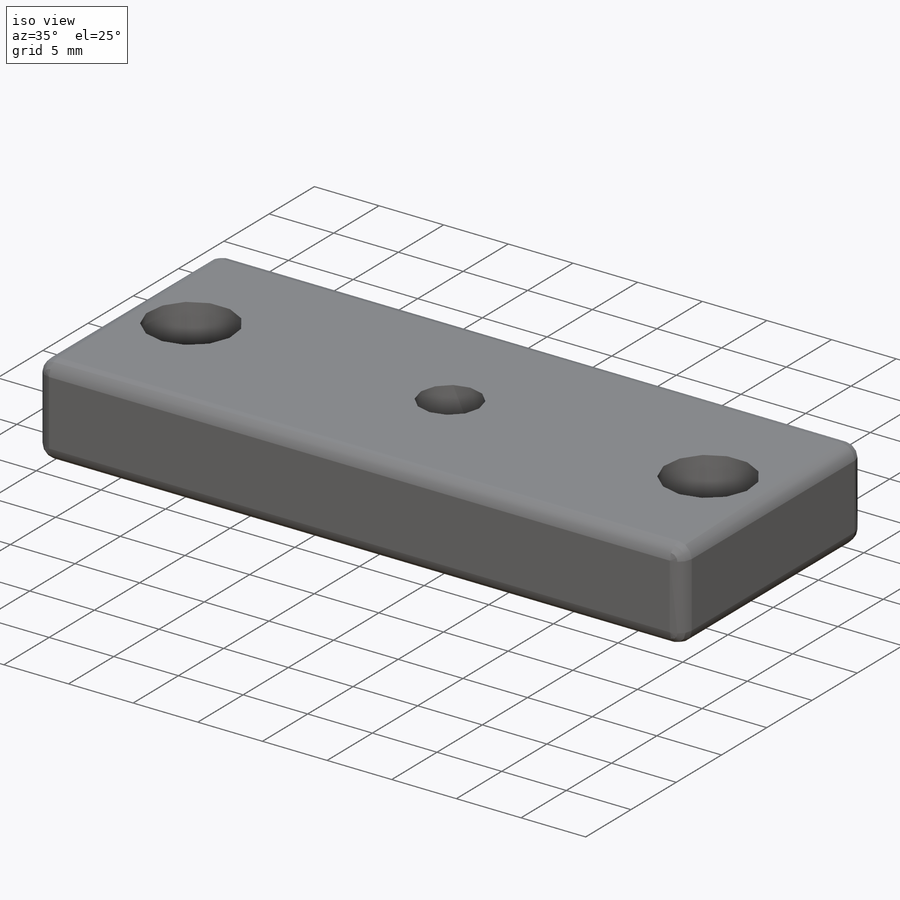
[diagram: iso view]
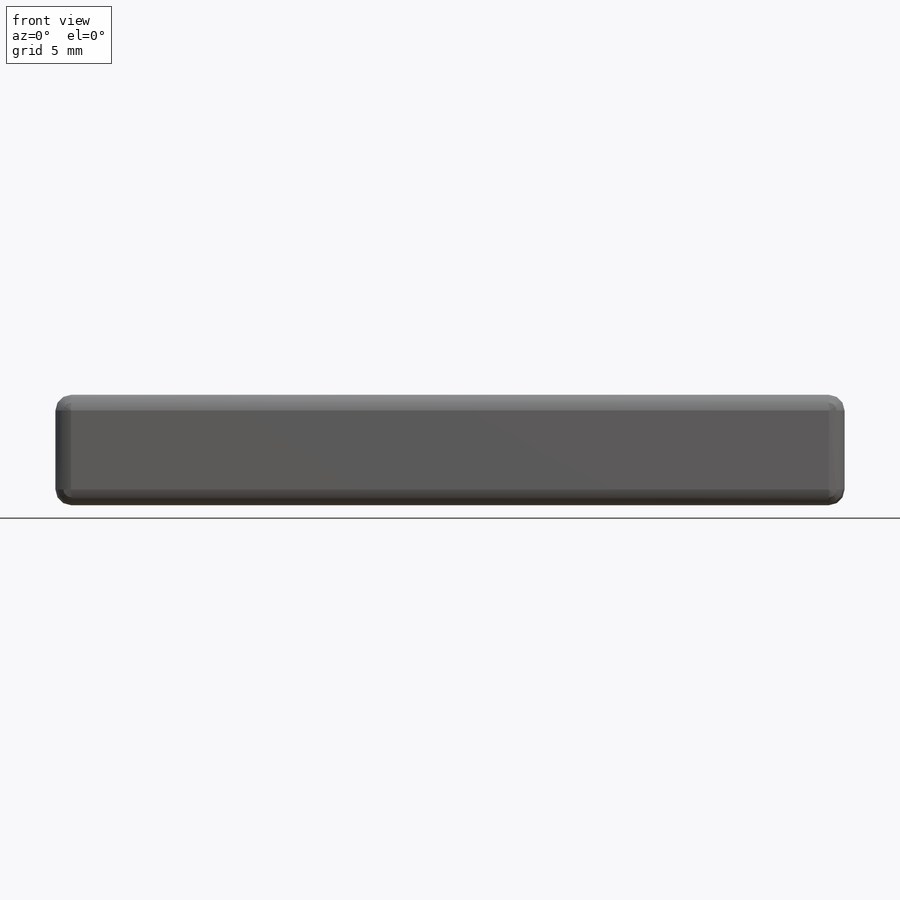
[diagram: front view]
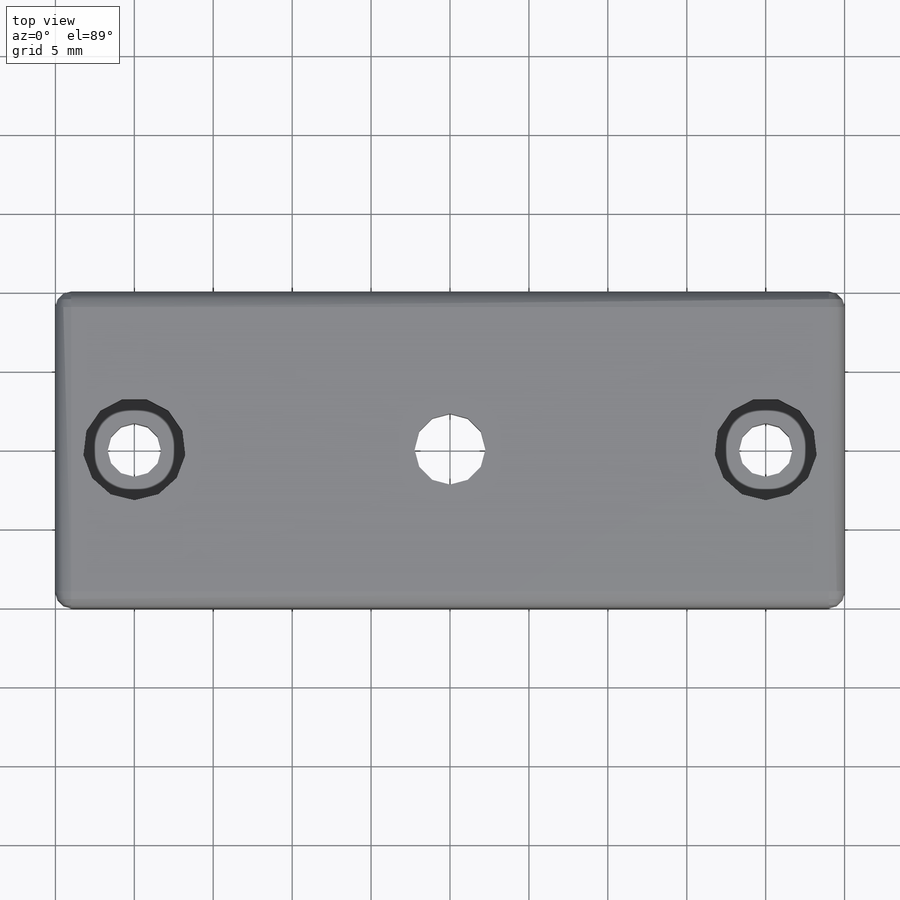
[diagram: top view]
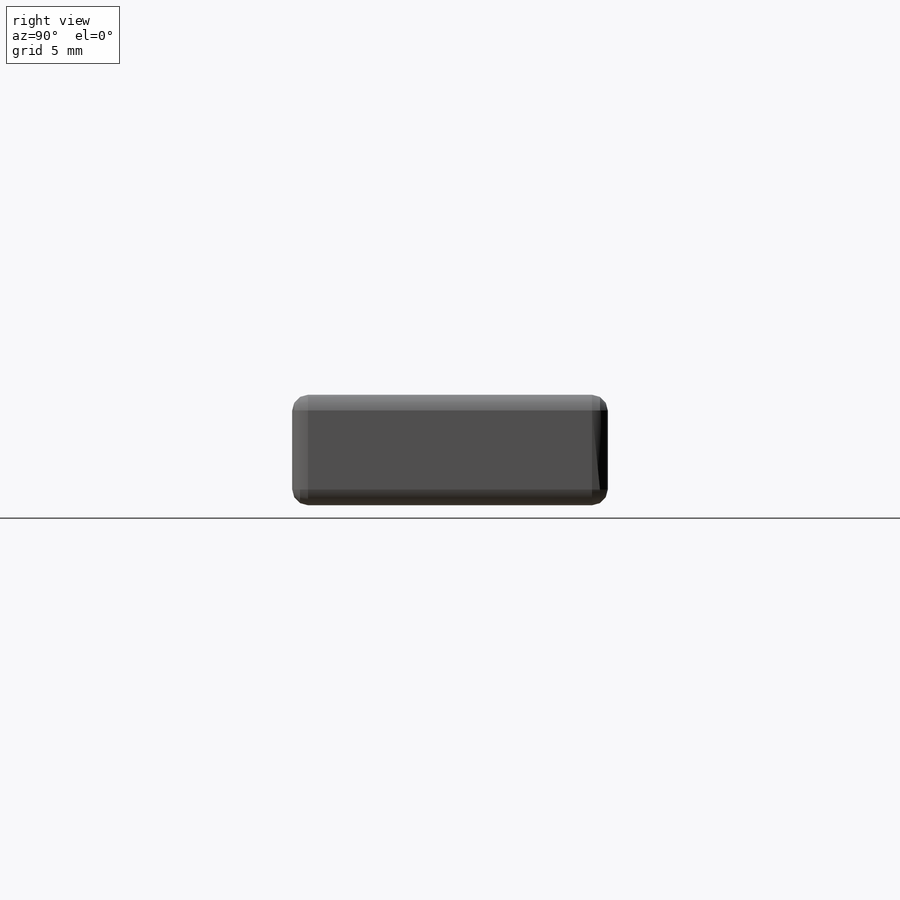
[diagram: right view]
SOLIDWORKS PART (.sldprt)
format: sldprt  version: not decoded by parser v0  size: 210,432 bytes
history: native  units: mm
features: sketch x5, hole x2, material x1, extrude x1, fillet x1 (+16 scaffold rows collapsed)
feature tree (26):
  scaffold x16  (default folders/planes/origin — collapsed)
  material  "Material <not specified>"
  sketch  "Sketch1"  dims[D1=50.0mm D2=20.0mm]
  extrude  "Extrude1"  Depth=7mm
  hole  "CBORE for M3 SHCS1"  Diameter=3.4mm Depth=7mm
  sketch  "Sketch6"  dims[D1=20.0mm]
  sketch  "Sketch7"  dims[hole-wizard template sketch: 42 standard entries collapsed; hole parameters kept: c12.Thru Hole Depth=7.0mm c12.C'Bore Dia.=6.5mm c12.C'Bore Depth=3.0mm]
  fillet  "Fillet1"  Radius=1mm
  hole  "CBORE for M4 SHCS1"  Diameter=4.5mm Depth=7mm
  sketch  "3DSketch4"
  sketch  "Sketch11"  dims[hole-wizard template sketch: 42 standard entries collapsed; hole parameters kept: c12.Thru Hole Depth=7.0mm c12.C'Bore Dia.=8.0mm c12.C'Bore Depth=4.0mm]
decode coverage: 8 of 9 modeling features carry decoded parameters
note: ~ marks probable driven/reference dimensions
note: suppression state not decoded; provenance and decode notes live in map.json
